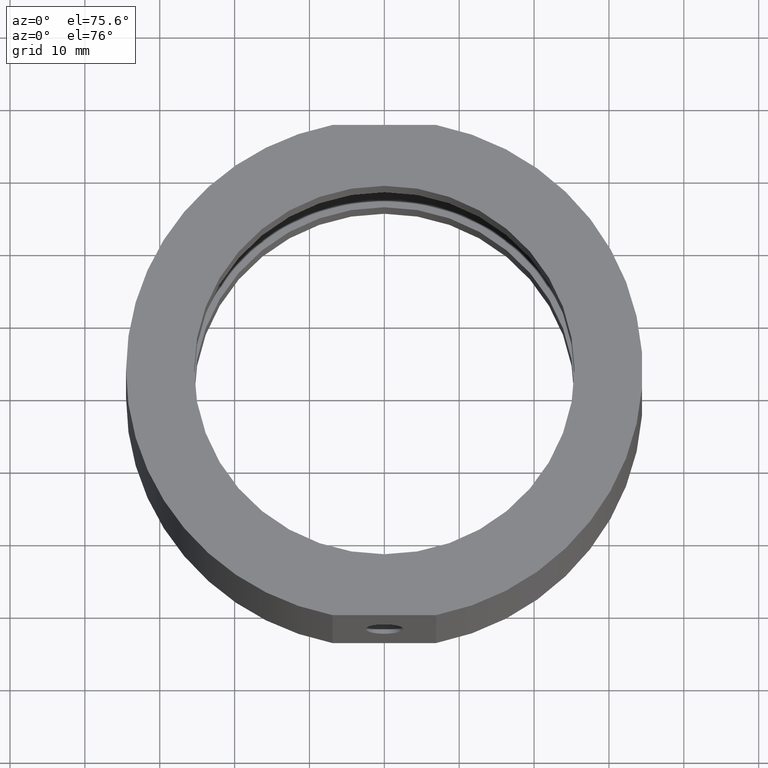
[diagram: clean part render]
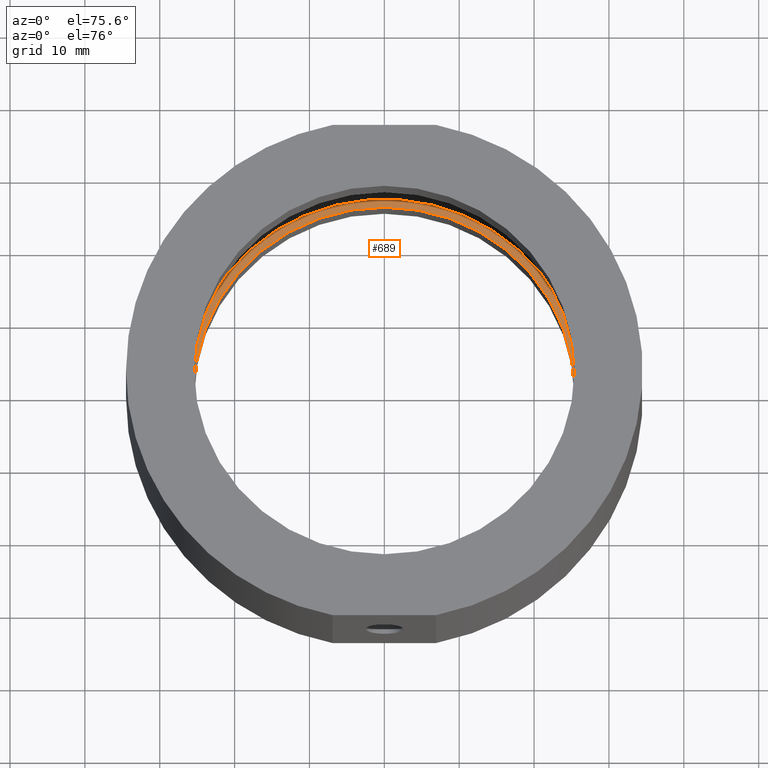
[diagram: same view with one face highlighted and labeled with its STEP entity id]
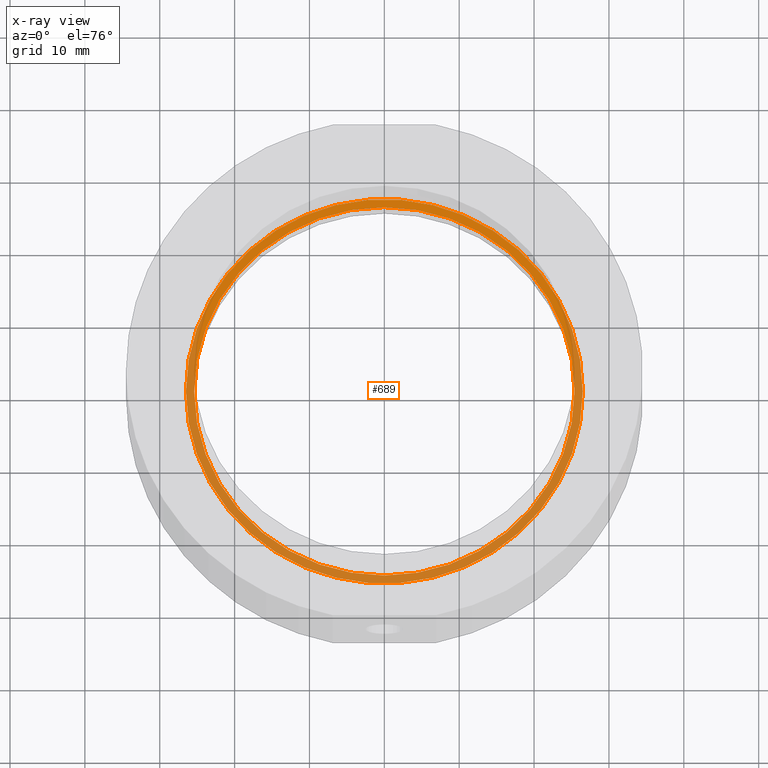
[diagram: x-ray of the same camera — body ghosted, the highlighted face saturated]
A machine part, auxiliary view. The second image highlights one B-rep face of the part: STEP entity #689.
The next image is the same camera in x-ray: the body ghosted, the highlighted face saturated — about 59% of this face is hidden behind the body in this view.
In plain terms, the highlighted planar face has unit normal (-0, 0, -1).
Its self-contained STEP definition (entity closure, byte-faithful):
#31 = ORIENTED_EDGE ( 'NONE', *, *, #647, .F. ) ;
#95 = CIRCLE ( 'NONE', #804, 26.50000000000000000 ) ;
#104 = DIRECTION ( 'NONE',  ( -1.000000000000000000, 0.0000000000000000000, 1.224646799147350500E-016 ) ) ;
#114 = DIRECTION ( 'NONE',  ( -1.000000000000000000, 0.0000000000000000000, 1.365923996832131900E-016 ) ) ;
#149 = VERTEX_POINT ( 'NONE', #1054 ) ;
#175 = AXIS2_PLACEMENT_3D ( 'NONE', #820, #813, #114 ) ;
#216 = EDGE_CURVE ( 'NONE', #149, #996, #1007, .T. ) ;
#242 = VERTEX_POINT ( 'NONE', #741 ) ;
#314 = CARTESIAN_POINT ( 'NONE',  ( -25.39999999999999100, 0.0000000000000000000, -3.999999999999993300 ) ) ;
#317 = FACE_OUTER_BOUND ( 'NONE', #823, .T. ) ;
#369 = ORIENTED_EDGE ( 'NONE', *, *, #216, .T. ) ;
#383 = ORIENTED_EDGE ( 'NONE', *, *, #1115, .F. ) ;
#421 = DIRECTION ( 'NONE',  ( -1.224646799147350500E-016, -0.0000000000000000000, -1.000000000000000000 ) ) ;
#449 = FACE_BOUND ( 'NONE', #518, .T. ) ;
#518 = EDGE_LOOP ( 'NONE', ( #864, #369 ) ) ;
#519 = VERTEX_POINT ( 'NONE', #685 ) ;
#547 = DIRECTION ( 'NONE',  ( -1.224646799147350500E-016, 0.0000000000000000000, -1.000000000000000000 ) ) ;
#611 = CARTESIAN_POINT ( 'NONE',  ( 3.421549032026375300E-015, 0.0000000000000000000, -4.000000000000000000 ) ) ;
#620 = CARTESIAN_POINT ( 'NONE',  ( 26.50000000000000400, 0.0000000000000000000, -4.000000000000001800 ) ) ;
#647 = EDGE_CURVE ( 'NONE', #519, #242, #95, .T. ) ;
#651 = CIRCLE ( 'NONE', #954, 25.39999999999999500 ) ;
#660 = AXIS2_PLACEMENT_3D ( 'NONE', #620, #547, #104 ) ;
#677 = DIRECTION ( 'NONE',  ( -1.000000000000000000, 0.0000000000000000000, 1.309225264888156400E-016 ) ) ;
#683 = CARTESIAN_POINT ( 'NONE',  ( 3.421549032026375300E-015, 0.0000000000000000000, -4.000000000000000000 ) ) ;
#685 = CARTESIAN_POINT ( 'NONE',  ( 26.50000000000000400, 3.245314017740485800E-015, -4.000000000000003600 ) ) ;
#689 = ADVANCED_FACE ( 'NONE', ( #317, #449 ), #706, .F. ) ;
#706 = PLANE ( 'NONE',  #660 ) ;
#741 = CARTESIAN_POINT ( 'NONE',  ( -26.49999999999999600, 0.0000000000000000000, -3.999999999999996400 ) ) ;
#796 = DIRECTION ( 'NONE',  ( -1.224646799147350500E-016, -0.0000000000000000000, -1.000000000000000000 ) ) ;
#804 = AXIS2_PLACEMENT_3D ( 'NONE', #611, #796, #883 ) ;
#813 = DIRECTION ( 'NONE',  ( -1.224646799147350500E-016, -0.0000000000000000000, -1.000000000000000000 ) ) ;
#820 = CARTESIAN_POINT ( 'NONE',  ( 3.421549032026375700E-015, 0.0000000000000000000, -3.999999999999996400 ) ) ;
#823 = EDGE_LOOP ( 'NONE', ( #383, #31 ) ) ;
#838 = DIRECTION ( 'NONE',  ( -1.000000000000000000, 0.0000000000000000000, 1.365923996832131900E-016 ) ) ;
#864 = ORIENTED_EDGE ( 'NONE', *, *, #1044, .T. ) ;
#883 = DIRECTION ( 'NONE',  ( -1.000000000000000000, 0.0000000000000000000, 1.309225264888156400E-016 ) ) ;
#888 = CIRCLE ( 'NONE', #898, 26.50000000000000000 ) ;
#898 = AXIS2_PLACEMENT_3D ( 'NONE', #683, #421, #677 ) ;
#925 = DIRECTION ( 'NONE',  ( -1.224646799147350500E-016, -0.0000000000000000000, -1.000000000000000000 ) ) ;
#954 = AXIS2_PLACEMENT_3D ( 'NONE', #1104, #925, #838 ) ;
#996 = VERTEX_POINT ( 'NONE', #314 ) ;
#1007 = CIRCLE ( 'NONE', #175, 25.39999999999999500 ) ;
#1044 = EDGE_CURVE ( 'NONE', #996, #149, #651, .T. ) ;
#1054 = CARTESIAN_POINT ( 'NONE',  ( 25.39999999999999900, 3.110602869834276900E-015, -4.000000000000000000 ) ) ;
#1104 = CARTESIAN_POINT ( 'NONE',  ( 3.421549032026375700E-015, 0.0000000000000000000, -3.999999999999996400 ) ) ;
#1115 = EDGE_CURVE ( 'NONE', #242, #519, #888, .T. ) ;